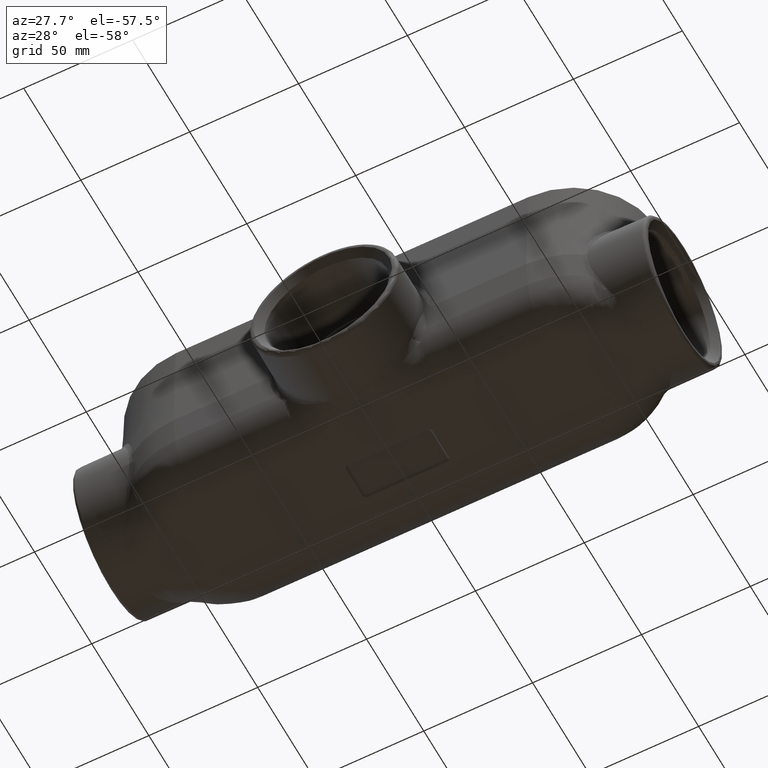
[diagram: clean part render]
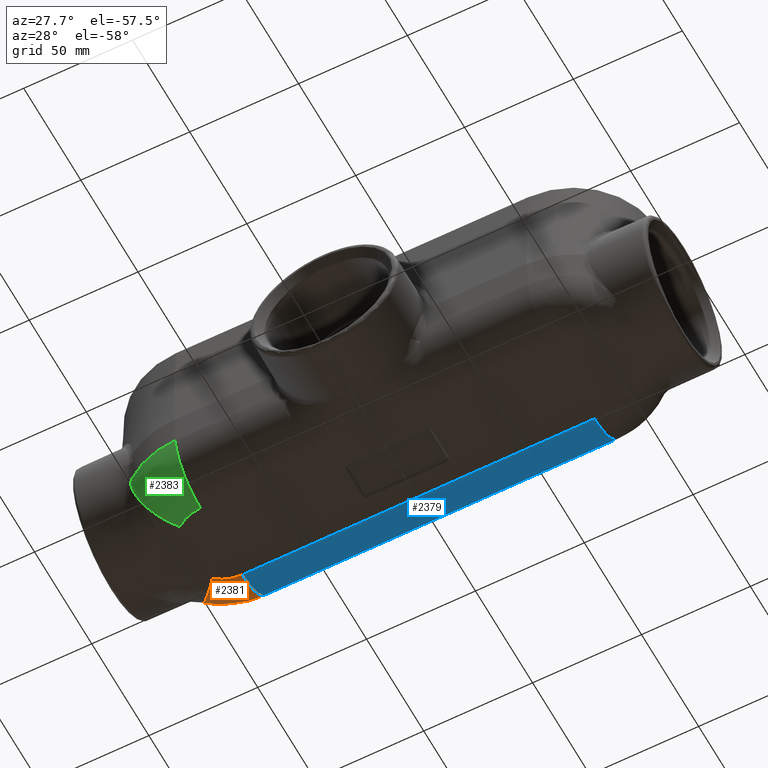
[diagram: same view with three faces highlighted in distinct colors, each labeled with its STEP entity id]
A machine part, auxiliary view with three faces highlighted in distinct colors.
Their STEP definitions:

[orange] entity #2381 — the highlighted face is a freeform B-spline surface patch.
#38=(
BOUNDED_SURFACE()
B_SPLINE_SURFACE(2,2,((#7429,#7430,#7431),(#7432,#7433,#7434),(#7435,#7436,
#7437)),.UNSPECIFIED.,.F.,.F.,.F.)
B_SPLINE_SURFACE_WITH_KNOTS((3,3),(3,3),(-1.5707963267949,-0.0872664625997163),
(1.57079632679797,2.25725217986391),.UNSPECIFIED.)
GEOMETRIC_REPRESENTATION_ITEM()
RATIONAL_B_SPLINE_SURFACE(((1.,0.941673284048179,1.),(0.737277336810124,
0.694274371008285,0.737277336810124),(1.,0.941673284048179,1.)))
REPRESENTATION_ITEM('')
SURFACE()
);
#271=FACE_OUTER_BOUND('',#435,.T.);
#435=EDGE_LOOP('',(#2032,#2033,#2034,#2035,#2036));
#580=B_SPLINE_CURVE_WITH_KNOTS('',3,(#7438,#7439,#7440,#7441),
 .UNSPECIFIED.,.F.,.F.,(4,4),(0.,1.),.UNSPECIFIED.);
#837=CIRCLE('',#2469,0.716262692245141);
#864=CIRCLE('',#2515,1.58793305307542);
#928=CIRCLE('',#2657,0.875);
#929=CIRCLE('',#2658,0.875);
#970=VERTEX_POINT('',#3421);
#971=VERTEX_POINT('',#3422);
#1056=VERTEX_POINT('',#4042);
#1057=VERTEX_POINT('',#4043);
#1165=VERTEX_POINT('',#7393);
#1201=EDGE_CURVE('',#970,#971,#837,.F.);
#1290=EDGE_CURVE('',#1056,#1057,#864,.T.);
#1476=EDGE_CURVE('',#1056,#971,#928,.T.);
#1478=EDGE_CURVE('',#970,#1165,#929,.T.);
#1479=EDGE_CURVE('',#1165,#1057,#580,.T.);
#2032=ORIENTED_EDGE('',*,*,#1478,.T.);
#2033=ORIENTED_EDGE('',*,*,#1479,.T.);
#2034=ORIENTED_EDGE('',*,*,#1290,.F.);
#2035=ORIENTED_EDGE('',*,*,#1476,.T.);
#2036=ORIENTED_EDGE('',*,*,#1201,.F.);
#2381=ADVANCED_FACE('',(#271),#38,.F.);
#2469=AXIS2_PLACEMENT_3D('',#3423,#2747,#2748);
#2515=AXIS2_PLACEMENT_3D('',#4044,#2878,#2879);
#2657=AXIS2_PLACEMENT_3D('',#7335,#3224,#3225);
#2658=AXIS2_PLACEMENT_3D('',#7428,#3226,#3227);
#2747=DIRECTION('center_axis',(0.,0.,1.));
#2748=DIRECTION('ref_axis',(1.,0.,0.));
#2878=DIRECTION('center_axis',(0.,0.,1.));
#2879=DIRECTION('ref_axis',(1.,0.,0.));
#3224=DIRECTION('center_axis',(-1.,-3.07605825122641E-12,-3.30130568507428E-28));
#3225=DIRECTION('ref_axis',(3.07605825122641E-12,-1.,0.));
#3226=DIRECTION('center_axis',(0.773497147778218,0.633799780986836,0.));
#3227=DIRECTION('ref_axis',(-0.633799780986836,0.773497147778218,0.));
#3421=CARTESIAN_POINT('',(-1.70396713747404,-0.102222850508012,-3.4375));
#3422=CARTESIAN_POINT('',(-1.2500000000022,0.0600126922255305,-3.4375));
#3423=CARTESIAN_POINT('Origin',(-1.25,-0.656250000019611,-3.4375));
#4042=CARTESIAN_POINT('',(-1.25000000000488,0.931683053055808,-2.6387612749042));
#4043=CARTESIAN_POINT('',(-2.21558416866454,0.604376270638678,-2.6387612749042));
#4044=CARTESIAN_POINT('Origin',(-1.25,-0.656250000019611,-2.6387612749042));
#7335=CARTESIAN_POINT('Origin',(-1.2500000000022,0.0600126922255307,-2.5625));
#7393=CARTESIAN_POINT('',(-2.24865173141175,0.56251701291315,-2.72701324294917));
#7428=CARTESIAN_POINT('Origin',(-1.70396713747401,-0.102222850508048,-2.5625));
#7429=CARTESIAN_POINT('Ctrl Pts',(-1.25,0.0600126922255304,-3.4375));
#7430=CARTESIAN_POINT('Ctrl Pts',(-1.50597286020024,0.0600126922251366,
-3.4375));
#7431=CARTESIAN_POINT('Ctrl Pts',(-1.70396713747401,-0.102222850508048,
-3.4375));
#7432=CARTESIAN_POINT('Ctrl Pts',(-1.25,0.861802469490776,-3.4375));
#7433=CARTESIAN_POINT('Ctrl Pts',(-1.79251078097702,0.861802469489941,-3.4375));
#7434=CARTESIAN_POINT('Ctrl Pts',(-2.21214132270221,0.51795925532435,-3.4375));
#7435=CARTESIAN_POINT('Ctrl Pts',(-1.25,0.931683053055808,-2.6387612749042));
#7436=CARTESIAN_POINT('Ctrl Pts',(-1.81748420628769,0.931683053054935,-2.6387612749042));
#7437=CARTESIAN_POINT('Ctrl Pts',(-2.25643162126096,0.57201168739698,-2.6387612749042));
#7438=CARTESIAN_POINT('Ctrl Pts',(-2.24865173141174,0.562517012913159,-2.72701324294917));
#7439=CARTESIAN_POINT('Ctrl Pts',(-2.23887746742395,0.577769561409783,-2.69774455972998));
#7440=CARTESIAN_POINT('Ctrl Pts',(-2.22788709956485,0.591697139530783,-2.66830309072823));
#7441=CARTESIAN_POINT('Ctrl Pts',(-2.21558416866454,0.604376270638678,-2.6387612749042));

[blue] entity #2379 — the highlighted cylindrical surface (partial cylindrical patch) has radius 22.225 mm, axis along (1, 0, 0).
#69=CYLINDRICAL_SURFACE('',#2656,0.875);
#269=FACE_OUTER_BOUND('',#433,.T.);
#433=EDGE_LOOP('',(#2025,#2026,#2027,#2028));
#589=LINE('',#3425,#713);
#640=LINE('',#4902,#764);
#713=VECTOR('',#2749,6.375);
#764=VECTOR('',#2926,6.375);
#927=CIRCLE('',#2655,0.875);
#928=CIRCLE('',#2657,0.875);
#971=VERTEX_POINT('',#3422);
#972=VERTEX_POINT('',#3424);
#1056=VERTEX_POINT('',#4042);
#1073=VERTEX_POINT('',#4898);
#1202=EDGE_CURVE('',#971,#972,#589,.F.);
#1317=EDGE_CURVE('',#1073,#1056,#640,.T.);
#1475=EDGE_CURVE('',#1073,#972,#927,.T.);
#1476=EDGE_CURVE('',#1056,#971,#928,.T.);
#2025=ORIENTED_EDGE('',*,*,#1475,.T.);
#2026=ORIENTED_EDGE('',*,*,#1202,.F.);
#2027=ORIENTED_EDGE('',*,*,#1476,.F.);
#2028=ORIENTED_EDGE('',*,*,#1317,.F.);
#2379=ADVANCED_FACE('',(#269),#69,.T.);
#2655=AXIS2_PLACEMENT_3D('',#7333,#3220,#3221);
#2656=AXIS2_PLACEMENT_3D('',#7334,#3222,#3223);
#2657=AXIS2_PLACEMENT_3D('',#7335,#3224,#3225);
#2749=DIRECTION('',(-1.,-3.07608226712473E-12,0.));
#2926=DIRECTION('',(-1.,-3.07605655561421E-12,0.));
#3220=DIRECTION('center_axis',(-1.,-3.07762527020309E-12,0.));
#3221=DIRECTION('ref_axis',(3.07762527020309E-12,-1.,0.));
#3222=DIRECTION('center_axis',(1.,3.07608226712473E-12,0.));
#3223=DIRECTION('ref_axis',(-3.07608226712474E-12,1.,0.));
#3224=DIRECTION('center_axis',(-1.,-3.07605825122641E-12,-3.30130568507428E-28));
#3225=DIRECTION('ref_axis',(3.07605825122641E-12,-1.,0.));
#3422=CARTESIAN_POINT('',(-1.2500000000022,0.0600126922255305,-3.4375));
#3424=CARTESIAN_POINT('',(5.1249999999978,0.0600126922451415,-3.4375));
#3425=CARTESIAN_POINT('',(5.1249999999978,0.0600126922451408,-3.4375));
#4042=CARTESIAN_POINT('',(-1.25000000000488,0.931683053055808,-2.6387612749042));
#4898=CARTESIAN_POINT('',(5.12499999999511,0.931683053075419,-2.6387612749042));
#4902=CARTESIAN_POINT('',(5.12499999999511,0.931683053075418,-2.6387612749042));
#7333=CARTESIAN_POINT('Origin',(5.1249999999978,0.0600126922451415,-2.5625));
#7334=CARTESIAN_POINT('Origin',(1.9374999999978,0.0600126922353358,-2.5625));
#7335=CARTESIAN_POINT('Origin',(-1.2500000000022,0.0600126922255307,-2.5625));

[green] entity #2383 — the highlighted face is a freeform B-spline surface patch.
#40=(
BOUNDED_SURFACE()
B_SPLINE_SURFACE(2,2,((#7640,#7641,#7642),(#7643,#7644,#7645),(#7646,#7647,
#7648)),.UNSPECIFIED.,.F.,.F.,.F.)
B_SPLINE_SURFACE_WITH_KNOTS((3,3),(3,3),(-1.5707963267949,-0.0872664625997163),
(-2.25725217990286,-1.57079632679182),.UNSPECIFIED.)
GEOMETRIC_REPRESENTATION_ITEM()
RATIONAL_B_SPLINE_SURFACE(((1.,0.941673284040589,1.),(0.737277336810124,
0.69427437100269,0.737277336810124),(1.,0.941673284040589,1.)))
REPRESENTATION_ITEM('')
SURFACE()
);
#273=FACE_OUTER_BOUND('',#437,.T.);
#437=EDGE_LOOP('',(#2040,#2041,#2042,#2043,#2044));
#582=B_SPLINE_CURVE_WITH_KNOTS('',3,(#7649,#7650,#7651,#7652),
 .UNSPECIFIED.,.F.,.F.,(4,4),(0.,1.),.UNSPECIFIED.);
#840=CIRCLE('',#2472,0.716262692245141);
#870=CIRCLE('',#2527,1.58793305307542);
#930=CIRCLE('',#2659,0.875);
#931=CIRCLE('',#2660,0.875);
#980=VERTEX_POINT('',#3659);
#981=VERTEX_POINT('',#3661);
#1069=VERTEX_POINT('',#4820);
#1070=VERTEX_POINT('',#4855);
#1166=VERTEX_POINT('',#7502);
#1211=EDGE_CURVE('',#980,#981,#840,.F.);
#1310=EDGE_CURVE('',#1069,#1070,#870,.T.);
#1480=EDGE_CURVE('',#1166,#981,#930,.F.);
#1482=EDGE_CURVE('',#1069,#1166,#582,.T.);
#1483=EDGE_CURVE('',#1070,#980,#931,.T.);
#2040=ORIENTED_EDGE('',*,*,#1310,.F.);
#2041=ORIENTED_EDGE('',*,*,#1482,.T.);
#2042=ORIENTED_EDGE('',*,*,#1480,.T.);
#2043=ORIENTED_EDGE('',*,*,#1211,.F.);
#2044=ORIENTED_EDGE('',*,*,#1483,.F.);
#2383=ADVANCED_FACE('',(#273),#40,.F.);
#2472=AXIS2_PLACEMENT_3D('',#3662,#2756,#2757);
#2527=AXIS2_PLACEMENT_3D('',#4856,#2911,#2912);
#2659=AXIS2_PLACEMENT_3D('',#7503,#3228,#3229);
#2660=AXIS2_PLACEMENT_3D('',#7653,#3230,#3231);
#2756=DIRECTION('center_axis',(0.,0.,1.));
#2757=DIRECTION('ref_axis',(1.,0.,0.));
#2911=DIRECTION('center_axis',(0.,0.,1.));
#2912=DIRECTION('ref_axis',(1.,0.,0.));
#3228=DIRECTION('center_axis',(-0.773497147753527,0.63379978101697,0.));
#3229=DIRECTION('ref_axis',(-0.63379978101697,-0.773497147753527,0.));
#3230=DIRECTION('center_axis',(1.,3.07637165502174E-12,0.));
#3231=DIRECTION('ref_axis',(-3.07637165502174E-12,1.,0.));
#3659=CARTESIAN_POINT('',(-1.2499999999978,-1.37251269226475,-3.4375));
#3661=CARTESIAN_POINT('',(-1.7039671374956,-1.21027714951349,-3.4375));
#3662=CARTESIAN_POINT('Origin',(-1.25,-0.656250000019611,-3.4375));
#4820=CARTESIAN_POINT('',(-2.21558416871201,-1.91687627064155,-2.6387612749042));
#4855=CARTESIAN_POINT('',(-1.24999999999511,-2.24418305309503,-2.6387612749042));
#4856=CARTESIAN_POINT('Origin',(-1.25,-0.656250000019611,-2.6387612749042));
#7502=CARTESIAN_POINT('',(-2.24865173145841,-1.87501701291247,-2.72701324295589));
#7503=CARTESIAN_POINT('Origin',(-1.7039671374956,-1.21027714951349,-2.5625));
#7640=CARTESIAN_POINT('Ctrl Pts',(-1.7039671374956,-1.21027714951349,-3.4375));
#7641=CARTESIAN_POINT('Ctrl Pts',(-1.50597286021626,-1.37251269226515,-3.4375));
#7642=CARTESIAN_POINT('Ctrl Pts',(-1.25,-1.37251269226475,-3.4375));
#7643=CARTESIAN_POINT('Ctrl Pts',(-2.21214132274795,-1.83045925532609,-3.4375));
#7644=CARTESIAN_POINT('Ctrl Pts',(-1.79251078101096,-2.17430246953083,-3.4375));
#7645=CARTESIAN_POINT('Ctrl Pts',(-1.25,-2.17430246953,-3.4375));
#7646=CARTESIAN_POINT('Ctrl Pts',(-2.25643162130881,-1.884511687397,-2.6387612749042));
#7647=CARTESIAN_POINT('Ctrl Pts',(-1.8174842063232,-2.2441830530959,-2.6387612749042));
#7648=CARTESIAN_POINT('Ctrl Pts',(-1.25,-2.24418305309503,-2.6387612749042));
#7649=CARTESIAN_POINT('Ctrl Pts',(-2.215584168712,-1.91687627064155,-2.6387612749042));
#7650=CARTESIAN_POINT('Ctrl Pts',(-2.2278870996122,-1.90419713953265,-2.66830309073055));
#7651=CARTESIAN_POINT('Ctrl Pts',(-2.23887746747102,-1.89026956141047,-2.69774455973456));
#7652=CARTESIAN_POINT('Ctrl Pts',(-2.24865173145838,-1.87501701291249,-2.72701324295593));
#7653=CARTESIAN_POINT('Origin',(-1.2499999999978,-1.37251269226475,-2.5625));